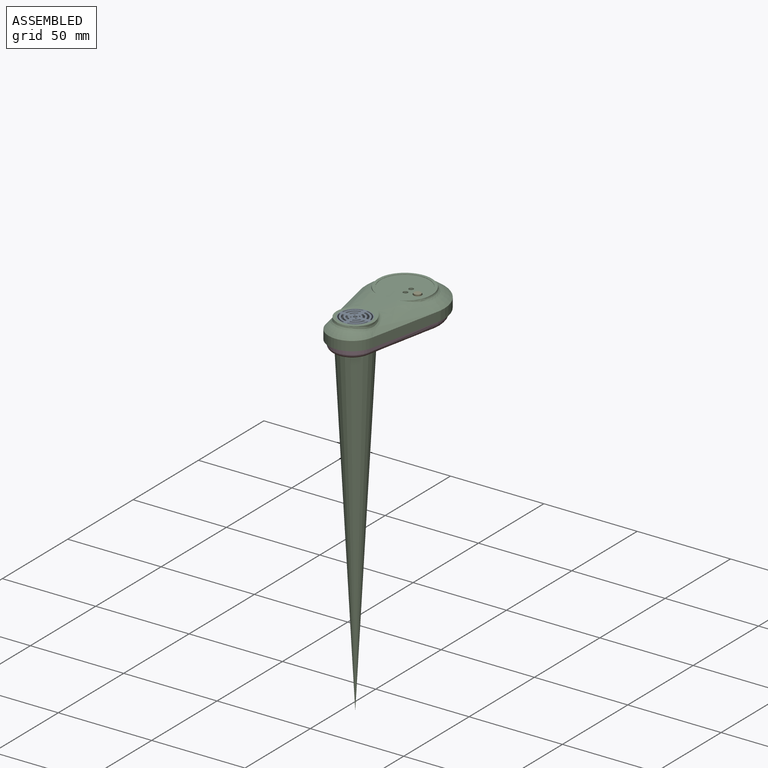
[diagram: assembled view]
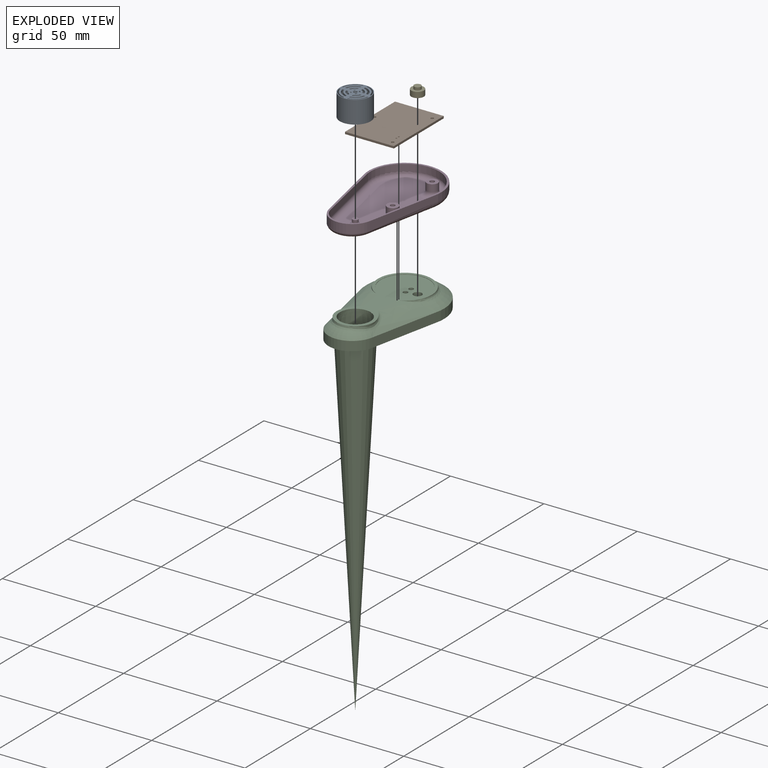
[diagram: exploded view]
GUIDED TOUR — MATED ASSEMBLY (Onshape document f2a3e280d14aaae046811828, AutoMate assembly f2a3e280d14aaae046811828_3dd87483bbbbbdf639f8a3ce_cf5b5eb2177cef34484dfca6_default)

This assembly has 5 components, labeled P0..P4 below (a component is one placed occurrence of a part; the same part can appear more than once), held together by 4 mates. A mate is a constraint between two components; its type names the relative motion it leaves free:
  SLIDER — leaves translation along the listed axis free.
Axis/direction vectors are unit vectors and 'through' points are millimeter coordinates, both in the assembly's world frame.

MATES
  1. SLIDER "Slider 1": P2 <-> P1, axis (0.000, 0.000, -1.000) through (69.57, -14.99, 4.18) mm
  2. SLIDER "Slider 4": P3 <-> P2, axis (0.000, 0.000, 1.000) through (59.43, -31.48, 2.58) mm
  3. SLIDER "Slider 2": P2 <-> P4, axis (0.000, 0.000, -1.000) through (68.22, 6.01, 9.18) mm
  4. SLIDER "Slider 3": P2 <-> P0, axis (0.000, 0.000, 1.000) through (59.43, -29.11, 10.28) mm

ASSEMBLY ORDER
  1. P2 — the base component [order heuristic]
  2. P0 — core [order heuristic]
  3. P3 — core [order heuristic]
  4. P1 — core [order heuristic]
  5. P4 [order verified]
(P4 verified with a relaxed clearance tolerance: the source model stores slight part interference there.)
Order-tag legend:
  [order verified] — this step's position reverses a verified removal order: the component was checked to insert without passing through the ones already placed.
  [order heuristic] — the first 4 components form the assembly's core: parts whose collision-free extraction could not be verified, listed in mate-graph order.

Of the 5 components, 1 carries the full construction recipe — the FeatureScript program that regenerates the part's solid from scratch; the rest are supplied as boundary geometry only.
Each toured component is shown spotlighted twice — in the assembled view, then in the exploded view, where a leader line traces a displaced component back to its assembled socket (saturated green if recipe-attached, orange if geometry-only; every other component desaturated gray) — followed by its recipe or geometry summary and the mates that hold it.
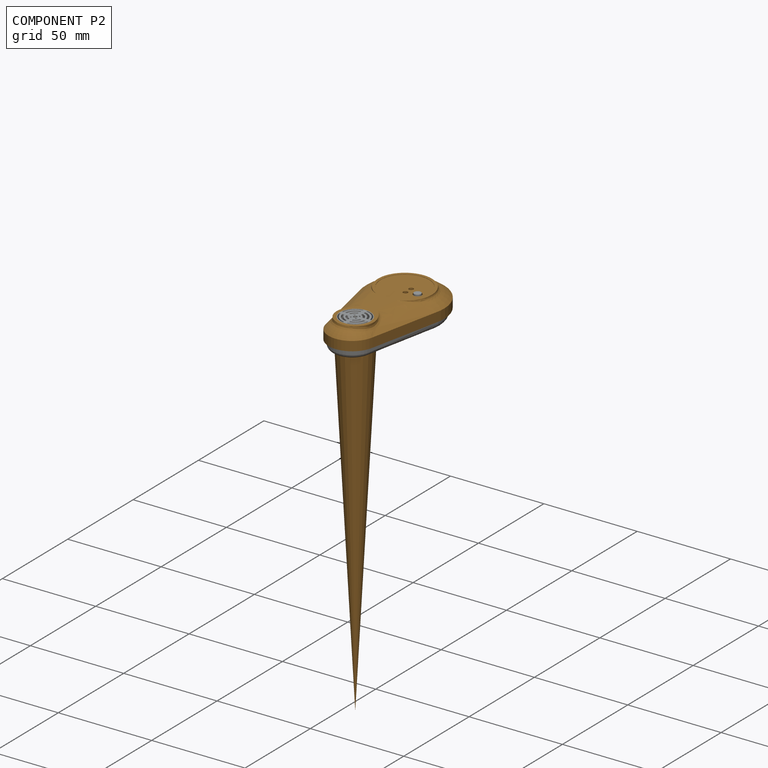
[diagram: component P2 — assembled]
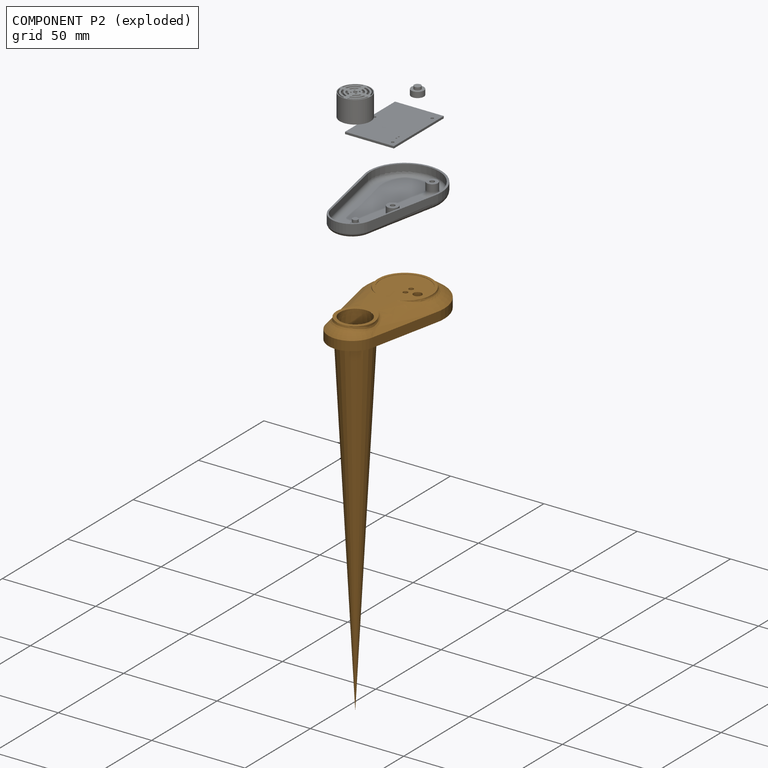
[diagram: component P2 — exploded]
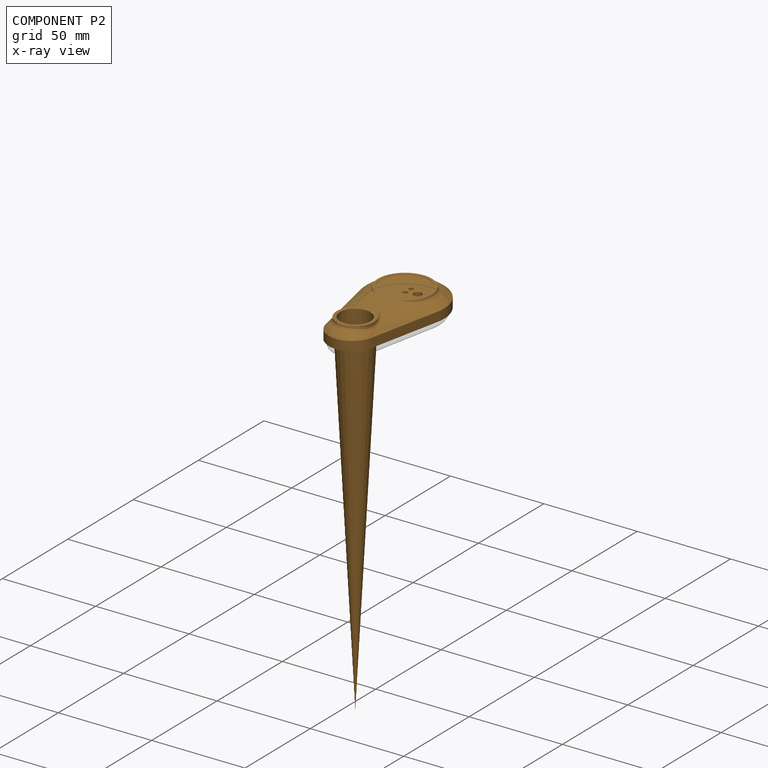
[diagram: component P2 — x-ray view]
COMPONENT P2 — geometry summary (no construction recipe available for this part):
  bounding box: 194.0 x 75.1 x 43.1 mm
  B-rep topology: 1 solid, 124 faces, 652 edges
  volume: 5787 mm^3 (1% of its bounding box)
Held by: SLIDER mate "Slider 1" to P1; SLIDER mate "Slider 4" to P3; SLIDER mate "Slider 2" to P4; SLIDER mate "Slider 3" to P0.
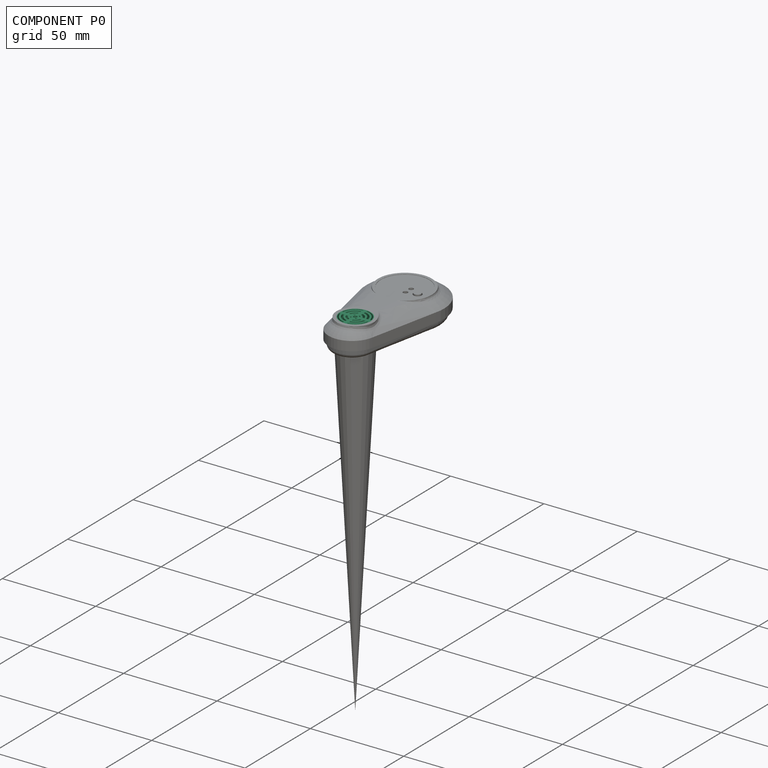
[diagram: component P0 — assembled]
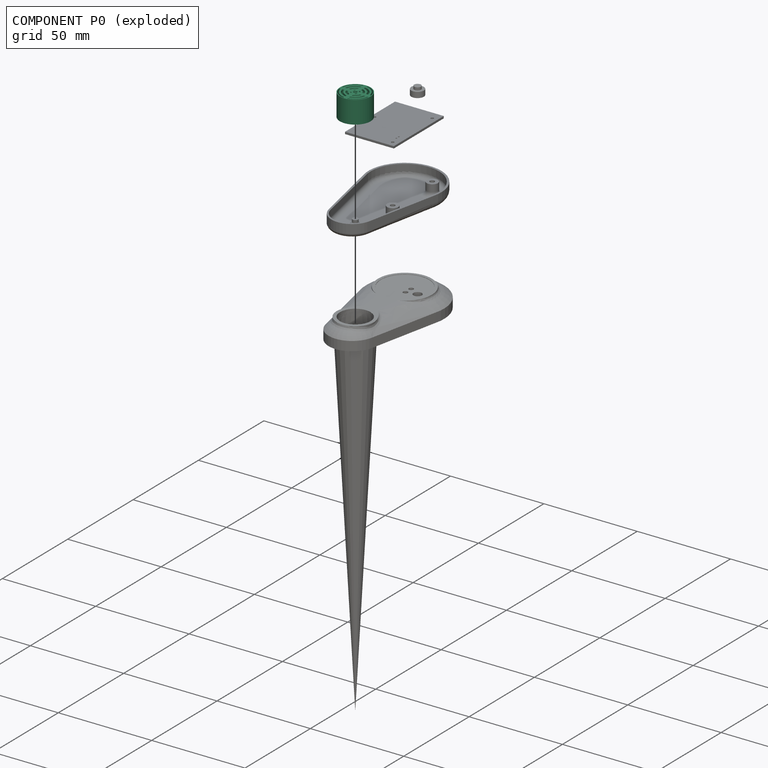
[diagram: component P0 — exploded]
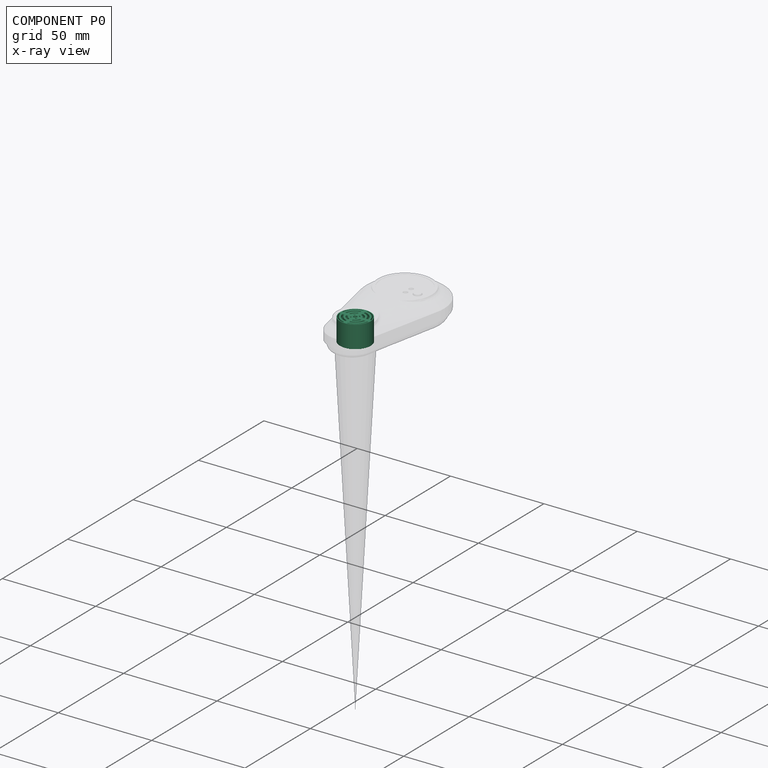
[diagram: component P0 — x-ray view]
COMPONENT P0 — recipe-attached (CADFS 00661242, mesh-verified: the recipe's output STEP matches this component's geometry to below the mesh-comparison resolution (tessellation chordal tolerance ~0.04 mm)).
Held by: SLIDER mate "Slider 3" to P2.
Construction recipe (FeatureScript — the CAD program that rebuilds this solid; sketch coordinates are in the units given by the * unit suffixes, e.g. mm):

FeatureScript 1605;
import(path : "onshape/std/geometry.fs", version : "1605.0");
import(path : "onshape/std/common.fs", version : "1605.0");
const mm = millimeter;
const VERTEX = EntityType.VERTEX;
const EDGE = EntityType.EDGE;
const FACE = EntityType.FACE;
const BODY = EntityType.BODY;
function v(x, y){return vector(x, y);}
function OD(order){return orderDisambiguation(order);}
function OSD(set){return originalSetDisambiguation(set);}
function TD(topology){return topologyDisambiguation(topology);}
function TDD(query){return trueDependencyDisambiguation(query);}
function sQuery(a, b, c) {return sketchEntityQuery(a, b, c);}

annotation { "Feature Type Name" : "Feature", "Feature Type Description" : "" }
export const myFeature = defineFeature(function(context is Context, id is Id, definition is map)
    precondition{}
    {
        {
            var Q0;
            Q0=qCreatedBy(makeId("Top.planeOp"),FACE);
            var sketch = newSketch(context, id + "F0", { "sketchPlane" : qUnion([Q0])});
            skCircle(sketch, "E0", {"center": v(0, 0) * mm, "radius": 8.25 * mm});
            skArc(sketch, "E1.0", {"start": v(-1, 7.18) * mm, "mid": v(-5.13, 5.13) * mm, "end": v(-7.18, 1) * mm});
            skArc(sketch, "E2.0", {"start": v(-1, 6.17) * mm, "mid": v(-4.42, 4.42) * mm, "end": v(-6.17, 1) * mm});
            skArc(sketch, "E3.0", {"start": v(-5.15, -1) * mm, "mid": v(-3.71, -3.71) * mm, "end": v(-1, -5.15) * mm});
            skArc(sketch, "E4.0", {"start": v(-4.13, -1) * mm, "mid": v(-3, -3) * mm, "end": v(-1, -4.13) * mm});
            skArc(sketch, "E5.0", {"start": v(-3.1, -1) * mm, "mid": v(-2.3, -2.3) * mm, "end": v(-1, -3.1) * mm});
            skArc(sketch, "E6.0", {"start": v(-2.02, -1) * mm, "mid": v(-1.6, -1.6) * mm, "end": v(-1, -2.02) * mm});
            skCircle(sketch, "E7.0", {"center": v(0, 0) * mm, "radius": 1 * mm});
            skLineSegment(sketch, "E8.bottom", {"start": v(7.79, -1) * mm, "end": v(7.18, -1) * mm});
            skLineSegment(sketch, "E8.top", {"start": v(7.79, 1) * mm, "end": v(7.18, 1) * mm});
            skLineSegment(sketch, "E8.left", {"start": v(8.19, -1) * mm, "end": v(8.19, 1) * mm});
            skLineSegment(sketch, "E8.right", {"start": v(-8.19, -1) * mm, "end": v(-8.19, 1) * mm});
            skLineSegment(sketch, "E9.top", {"start": v(-1, -8.19) * mm, "end": v(1, -8.19) * mm});
            skLineSegment(sketch, "E9.left", {"start": v(-1, 7.79) * mm, "end": v(-1, 7.18) * mm});
            skLineSegment(sketch, "E9.right", {"start": v(1, 7.79) * mm, "end": v(1, 7.18) * mm});
            skLineSegment(sketch, "E10.trimOffspring", {"start": v(1, 6.17) * mm, "end": v(1, 5.15) * mm});
            skLineSegment(sketch, "E11.trimOffspring", {"start": v(-1, 6.17) * mm, "end": v(-1, 5.15) * mm});
            skArc(sketch, "E12.trimOffspring", {"start": v(1, -7.18) * mm, "mid": v(5.13, -5.13) * mm, "end": v(7.18, -1) * mm});
            skLineSegment(sketch, "E13.trimOffspring", {"start": v(-1, -7.18) * mm, "end": v(-1, -7.79) * mm});
            skLineSegment(sketch, "E14.trimOffspring", {"start": v(1, -7.18) * mm, "end": v(1, -7.79) * mm});
            skArc(sketch, "E15.trimOffspring", {"start": v(1, -6.17) * mm, "mid": v(4.42, -4.42) * mm, "end": v(6.17, -1) * mm});
            skArc(sketch, "E16.trimOffspring", {"start": v(-7.18, -1) * mm, "mid": v(-5.13, -5.13) * mm, "end": v(-1, -7.18) * mm});
            skArc(sketch, "E17.trimOffspring", {"start": v(-6.17, -1) * mm, "mid": v(-4.42, -4.42) * mm, "end": v(-1, -6.17) * mm});
            skLineSegment(sketch, "E18.trimOffspring", {"start": v(-7.18, 1) * mm, "end": v(-7.79, 1) * mm});
            skLineSegment(sketch, "E19.trimOffspring", {"start": v(-7.18, -1) * mm, "end": v(-7.79, -1) * mm});
            skLineSegment(sketch, "E20.trimOffspring", {"start": v(6.17, 1) * mm, "end": v(5.15, 1) * mm});
            skArc(sketch, "E21.trimOffspring", {"start": v(6.17, 1) * mm, "mid": v(4.42, 4.42) * mm, "end": v(1, 6.17) * mm});
            skArc(sketch, "E22.trimOffspring", {"start": v(7.18, 1) * mm, "mid": v(5.13, 5.13) * mm, "end": v(1, 7.18) * mm});
            skLineSegment(sketch, "E23.trimOffspring", {"start": v(6.17, -1) * mm, "end": v(5.15, -1) * mm});
            skArc(sketch, "E24.trimOffspring", {"start": v(2.02, 1) * mm, "mid": v(1.6, 1.6) * mm, "end": v(1, 2.02) * mm});
            skArc(sketch, "E25.trimOffspring", {"start": v(3.1, 1) * mm, "mid": v(2.3, 2.3) * mm, "end": v(1, 3.1) * mm});
            skArc(sketch, "E26.trimOffspring", {"start": v(4.13, 1) * mm, "mid": v(3, 3) * mm, "end": v(1, 4.13) * mm});
            skArc(sketch, "E27.trimOffspring", {"start": v(5.15, 1) * mm, "mid": v(3.71, 3.71) * mm, "end": v(1, 5.15) * mm});
            skLineSegment(sketch, "E28.trimOffspring", {"start": v(4.13, 1) * mm, "end": v(3.1, 1) * mm});
            skLineSegment(sketch, "E29.trimOffspring", {"start": v(2.02, 1) * mm, "end": v(1, 1) * mm});
            skLineSegment(sketch, "E30.trimOffspring", {"start": v(-3.1, 1) * mm, "end": v(-4.13, 1) * mm});
            skLineSegment(sketch, "E31.trimOffspring", {"start": v(-5.15, 1) * mm, "end": v(-6.17, 1) * mm});
            skLineSegment(sketch, "E32.trimOffspring", {"start": v(-5.15, -1) * mm, "end": v(-6.17, -1) * mm});
            skLineSegment(sketch, "E33.trimOffspring", {"start": v(-3.1, -1) * mm, "end": v(-4.13, -1) * mm});
            skLineSegment(sketch, "E34.trimOffspring", {"start": v(2.02, -1) * mm, "end": v(1, -1) * mm});
            skLineSegment(sketch, "E35.trimOffspring", {"start": v(4.13, -1) * mm, "end": v(3.1, -1) * mm});
            skLineSegment(sketch, "E36.trimOffspring", {"start": v(1, 4.13) * mm, "end": v(1, 3.1) * mm});
            skLineSegment(sketch, "E37.trimOffspring", {"start": v(-1, 4.13) * mm, "end": v(-1, 3.1) * mm});
            skLineSegment(sketch, "E38.trimOffspring", {"start": v(-1, 2.02) * mm, "end": v(-1, 1) * mm});
            skLineSegment(sketch, "E39.trimOffspring", {"start": v(1, 2.02) * mm, "end": v(1, 1) * mm});
            skLineSegment(sketch, "E40.trimOffspring", {"start": v(1, -3.1) * mm, "end": v(1, -4.13) * mm});
            skLineSegment(sketch, "E41.trimOffspring", {"start": v(-1, -3.1) * mm, "end": v(-1, -4.13) * mm});
            skLineSegment(sketch, "E42.trimOffspring", {"start": v(-1, -5.15) * mm, "end": v(-1, -6.17) * mm});
            skLineSegment(sketch, "E43.trimOffspring", {"start": v(1, -5.15) * mm, "end": v(1, -6.17) * mm});
            skArc(sketch, "E44.trimOffspring", {"start": v(-1, 5.15) * mm, "mid": v(-3.71, 3.71) * mm, "end": v(-5.15, 1) * mm});
            skArc(sketch, "E45.trimOffspring", {"start": v(-1, 4.13) * mm, "mid": v(-3, 3) * mm, "end": v(-4.13, 1) * mm});
            skArc(sketch, "E46.trimOffspring", {"start": v(-1, 3.1) * mm, "mid": v(-2.3, 2.3) * mm, "end": v(-3.1, 1) * mm});
            skArc(sketch, "E47.trimOffspring", {"start": v(-1, 2.02) * mm, "mid": v(-1.6, 1.6) * mm, "end": v(-2.02, 1) * mm});
            skLineSegment(sketch, "E48.trimOffspring", {"start": v(-1, 1) * mm, "end": v(-2.02, 1) * mm});
            skLineSegment(sketch, "E49.trimOffspring", {"start": v(-1, -1) * mm, "end": v(-1, -2.02) * mm});
            skLineSegment(sketch, "E50.trimOffspring", {"start": v(1, -1) * mm, "end": v(1, -2.02) * mm});
            skLineSegment(sketch, "E51.trimOffspring", {"start": v(-1, -1) * mm, "end": v(-2.02, -1) * mm});
            skArc(sketch, "E52.trimOffspring", {"start": v(1, -2.02) * mm, "mid": v(1.6, -1.6) * mm, "end": v(2.02, -1) * mm});
            skArc(sketch, "E53.trimOffspring", {"start": v(1, -3.1) * mm, "mid": v(2.3, -2.3) * mm, "end": v(3.1, -1) * mm});
            skArc(sketch, "E54.trimOffspring", {"start": v(1, -4.13) * mm, "mid": v(3, -3) * mm, "end": v(4.13, -1) * mm});
            skArc(sketch, "E55.trimOffspring", {"start": v(1, -5.15) * mm, "mid": v(3.71, -3.71) * mm, "end": v(5.15, -1) * mm});
            skCircle(sketch, "E56.0", {"center": v(0, 0) * mm, "radius": 7.85 * mm});
            skPoint(sketch, "E57.orphan", {"position": v(-1, 8.19) * mm});
            skPoint(sketch, "E58.orphan", {"position": v(1, 8.19) * mm});
            skSolve(sketch);
        }
        {
            var Q0;
            Q0=qCreatedBy(makeId("Top.planeOp"),FACE);
            cPlane(context, id + "F1", {"entities" : qUnion([Q0]), "cplaneType" : CPlaneType.OFFSET, "offset" : 11 * mm, "oppositeDirection" : true, "width" : 150 * mm, "height" : 150 * mm});
        }
        {
            var Q0;
            Q0=qCreatedBy(id+"F1.planeOp",FACE);
            var sketch = newSketch(context, id + "F2", { "sketchPlane" : qUnion([Q0])});
            skCircle(sketch, "E59.0", {"center": v(0, 0) * mm, "radius": 7.92 * mm});
            skFitSpline(sketch, "E60.0", {"points": [v(3.6, -0.4) * mm, v(3.6, -0.13) * mm, v(3.6, 0.13) * mm, v(3.6, 0.4) * mm]});
            skFitSpline(sketch, "E61.0", {"points": [v(4.4, 0.4) * mm, v(4.13, 0.4) * mm, v(3.87, 0.4) * mm, v(3.6, 0.4) * mm]});
            skFitSpline(sketch, "E62.0", {"points": [v(4.4, -0.4) * mm, v(4.4, -0.13) * mm, v(4.4, 0.13) * mm, v(4.4, 0.4) * mm]});
            skFitSpline(sketch, "E63.0", {"points": [v(4.4, -0.4) * mm, v(4.13, -0.4) * mm, v(3.87, -0.4) * mm, v(3.6, -0.4) * mm]});
            skFitSpline(sketch, "E64.0", {"points": [v(-4.4, -0.4) * mm, v(-4.4, -0.13) * mm, v(-4.4, 0.13) * mm, v(-4.4, 0.4) * mm]});
            skFitSpline(sketch, "E65.0", {"points": [v(-4.4, 0.4) * mm, v(-4.13, 0.4) * mm, v(-3.87, 0.4) * mm, v(-3.6, 0.4) * mm]});
            skFitSpline(sketch, "E66.0", {"points": [v(-3.6, -0.4) * mm, v(-3.6, -0.13) * mm, v(-3.6, 0.13) * mm, v(-3.6, 0.4) * mm]});
            skFitSpline(sketch, "E67.0", {"points": [v(-4.4, -0.4) * mm, v(-4.13, -0.4) * mm, v(-3.87, -0.4) * mm, v(-3.6, -0.4) * mm]});
            skCircle(sketch, "E68.0", {"center": v(0, 0) * mm, "radius": 7.12 * mm});
            skSolve(sketch);
        }
        {
            var Q0;
            Q0=makeQuery(id+"F0.imprint","IMPRINT",FACE,{"disambiguationData":[TD([[makeQuery(id+"F0.imprint","IMPRINT",EDGE,{"derivedFrom":sQuery(id+"F0.wireOp",EDGE,"E1.0")}),1.0]])]});
            extrude(context, id + "F3", {"entities" : qUnion([Q0]), "oppositeDirection" : true, "depth" : 1 * mm, "offsetDistance" : 25 * mm});
        }
        {
            var Q0;
            Q0 = qSketchRegion(id + "F0", true);
            extrude(context, id + "F4", {"entities" : qUnion([Q0]), "operationType" : NewBodyOperationType.ADD, "oppositeDirection" : true, "depth" : 12 * mm, "offsetDistance" : 25 * mm});
        }
        {
            var Q0;
            Q0=makeQuery(id+"F2.imprint","IMPRINT",FACE,{"disambiguationData":[TD([[makeQuery(id+"F2.imprint","IMPRINT",EDGE,{"derivedFrom":sQuery(id+"F2.wireOp",EDGE,"E60.0")}),1.0]])]});
            var Q1;
            Q1=makeQuery(id+"F2.imprint","IMPRINT",FACE,{"disambiguationData":[TD([[makeQuery(id+"F2.imprint","IMPRINT",EDGE,{"derivedFrom":sQuery(id+"F2.wireOp",EDGE,"E59.0")}),1.0]])]});
            extrude(context, id + "F5", {"entities" : qUnion([Q0, Q1]), "operationType" : NewBodyOperationType.ADD, "oppositeDirection" : true, "depth" : 0.2 * mm, "offsetDistance" : 25 * mm});
        }
        {
            var Q0;
            Q0=makeQuery(id+"F2.imprint","IMPRINT",FACE,{"disambiguationData":[TD([[makeQuery(id+"F2.imprint","IMPRINT",EDGE,{"derivedFrom":sQuery(id+"F2.wireOp",EDGE,"E64.0")}),-1.0]])]});
            var Q1;
            Q1=makeQuery(id+"F2.imprint","IMPRINT",FACE,{"disambiguationData":[TD([[makeQuery(id+"F2.imprint","IMPRINT",EDGE,{"derivedFrom":sQuery(id+"F2.wireOp",EDGE,"E60.0")}),-1.0]])]});
            extrude(context, id + "F6", {"entities" : qUnion([Q0, Q1]), "operationType" : NewBodyOperationType.ADD, "oppositeDirection" : true, "depth" : 2 * mm, "offsetDistance" : 25 * mm});
        }
    });
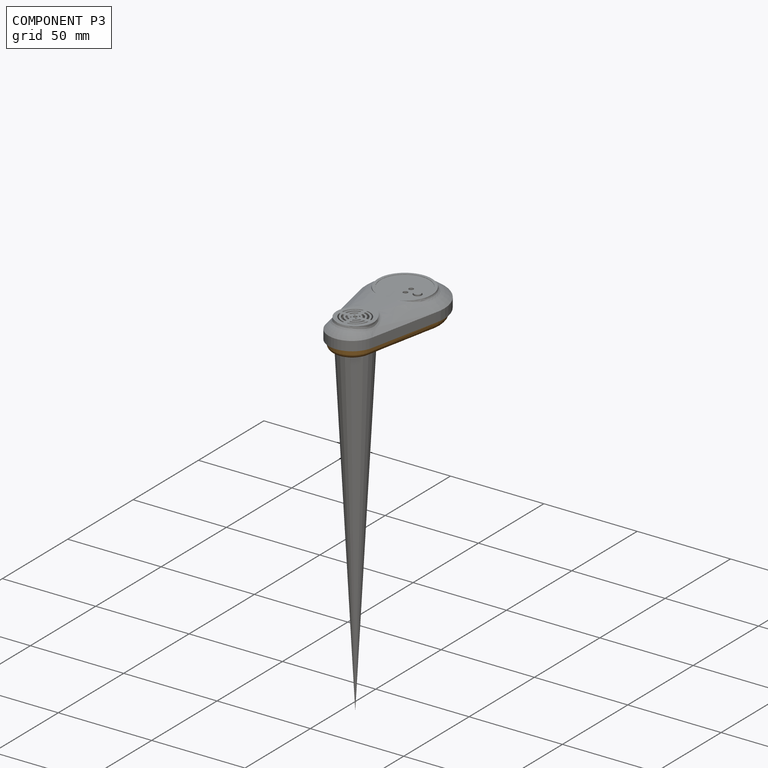
[diagram: component P3 — assembled]
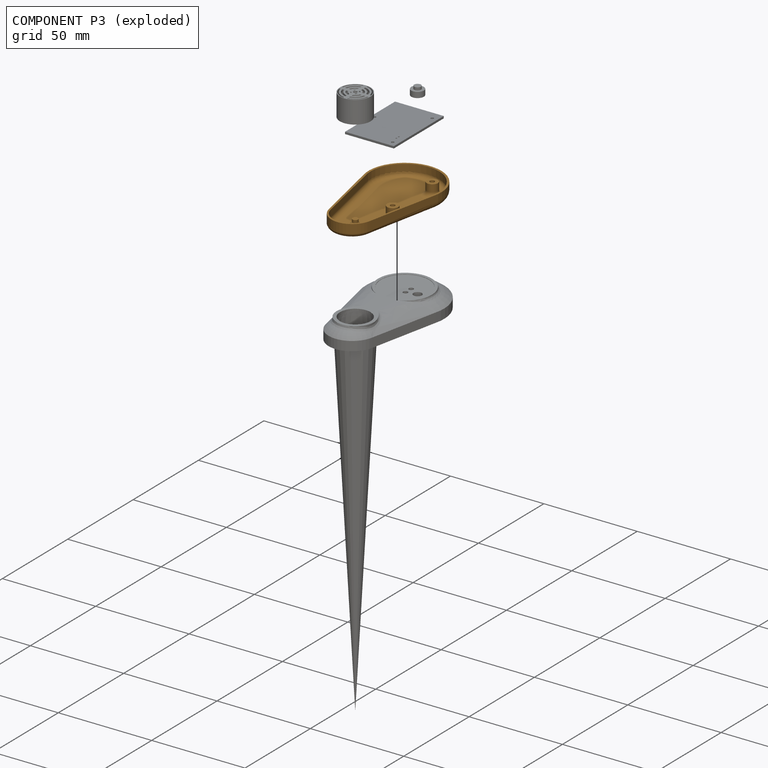
[diagram: component P3 — exploded]
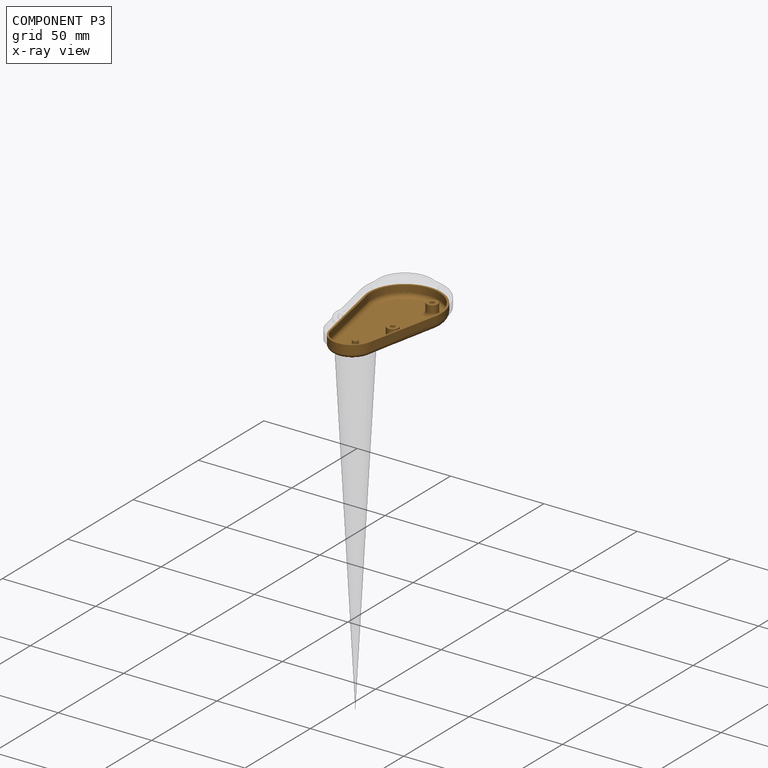
[diagram: component P3 — x-ray view]
COMPONENT P3 — geometry summary (no construction recipe available for this part):
  bounding box: 73.7 x 42.2 x 7.4 mm
  B-rep topology: 1 solid, 34 faces, 162 edges
  volume: 3464 mm^3 (15% of its bounding box)
Held by: SLIDER mate "Slider 4" to P2.
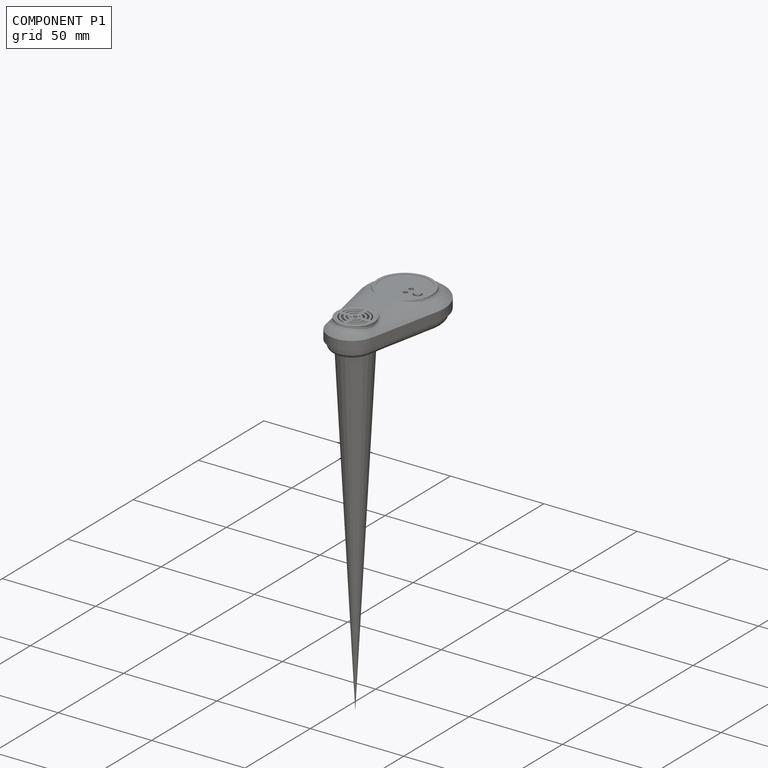
[diagram: component P1 — assembled]
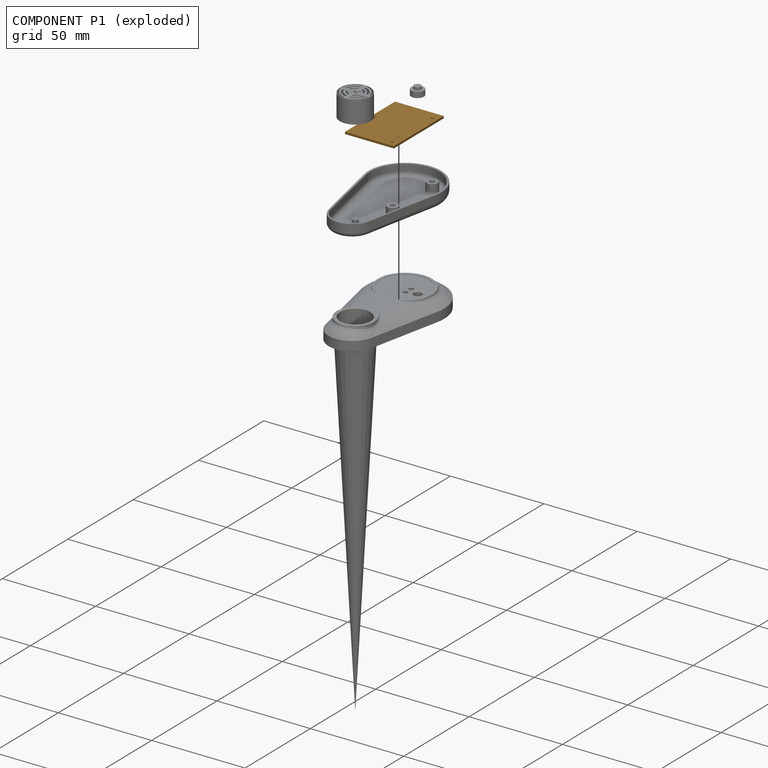
[diagram: component P1 — exploded]
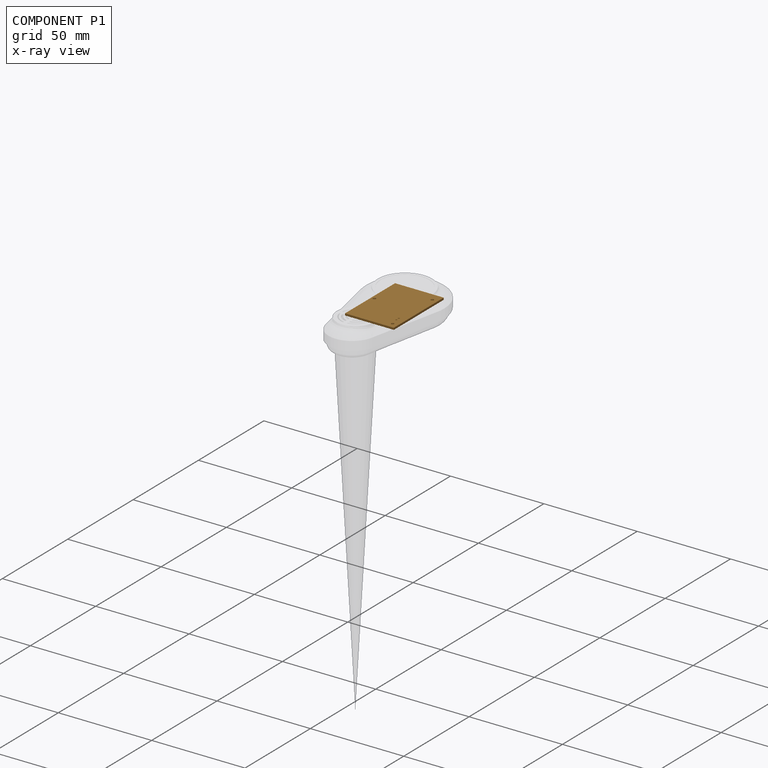
[diagram: component P1 — x-ray view]
COMPONENT P1 — geometry summary (no construction recipe available for this part):
  bounding box: 38.2 x 26.1 x 1.1 mm
  B-rep topology: 1 solid, 11 faces, 54 edges
  volume: 1114 mm^3 (99% of its bounding box)
  symmetry: mirror-symmetric across its z mid-plane
Held by: SLIDER mate "Slider 1" to P2.
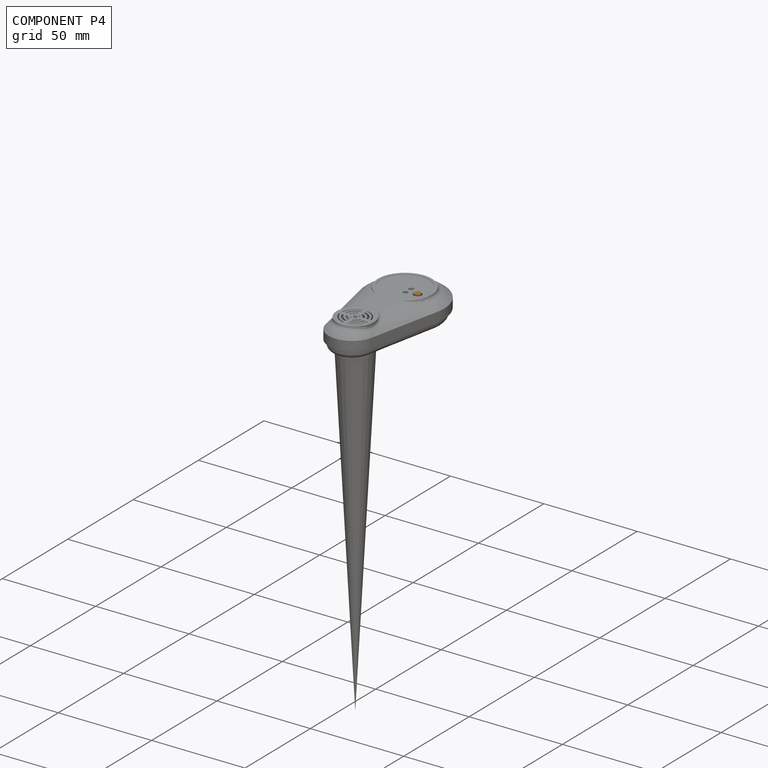
[diagram: component P4 — assembled]
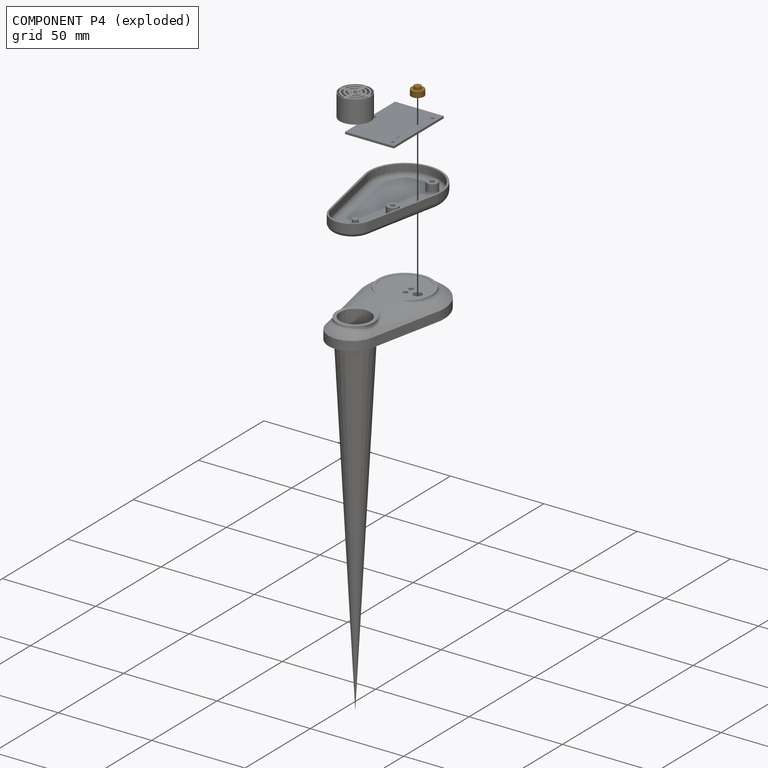
[diagram: component P4 — exploded]
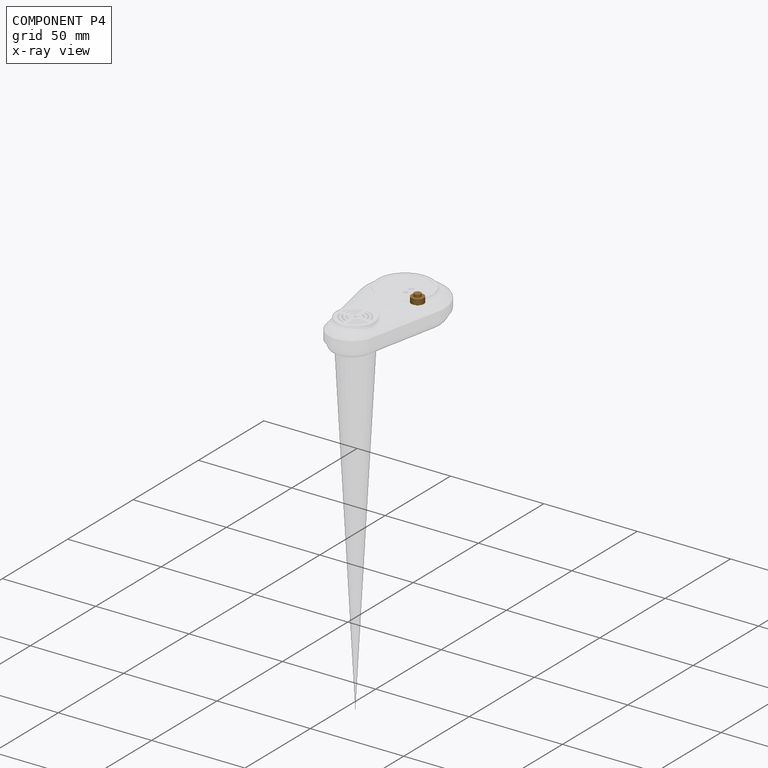
[diagram: component P4 — x-ray view]
COMPONENT P4 — geometry summary (no construction recipe available for this part):
  bounding box: 6.7 x 6.7 x 4.5 mm
  B-rep topology: 1 solid, 5 faces, 12 edges
  volume: 123 mm^3 (60% of its bounding box)
  symmetry: revolution-symmetric about the z axis through its bounding-box center; mirror-symmetric across its x mid-plane, y mid-plane
Held by: SLIDER mate "Slider 2" to P2.
PROVENANCE & LICENSES
Assembly (occurrences, transforms, mates, per-part STEP geometry): AutoMate dataset, Zenodo record 7776208, CC0.
Construction recipes: CADFS (HuggingFace VladPyatov/CADFS, CC-BY-4.0, layered over the ABC dataset), FeatureScript reconstruction programs keyed by ABC model id.
Join: ABC meta listings map ABC model id -> Onshape documentId; within a shared document, parts are matched by geometric signature (bounding-box dims + volume at 0.1% relative tolerance, exact B-rep face/solid counts).
Verification: 1 of this assembly's 5 components carries a recipe attachment, and every attachment is mesh-verified: the CADFS STEP and the AutoMate member STEP were compared as meshes in their shared local frame (symmetric sampled-point-to-mesh distance); worst across the 1 attachment: below the mesh-comparison resolution (tessellation chordal tolerance ~0.04 mm) on a 27 mm part.
Renders: orthographic iso camera (az 35 / el 25); the floor grid conveys scale (grid pitch printed in each image; no ruler). In the exploded view each component is displaced by its stored offset vector: the offsets alone carry the explosion direction (mate normal/axis signs are not orientation cues and do not encode it), and separation distances are assigned per mate-chain, not proportionally to assembly-order depth.
